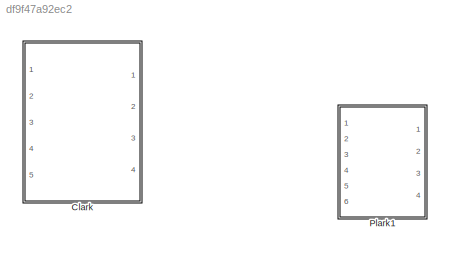
MODEL slx_df9f47a92ec2
KIND model
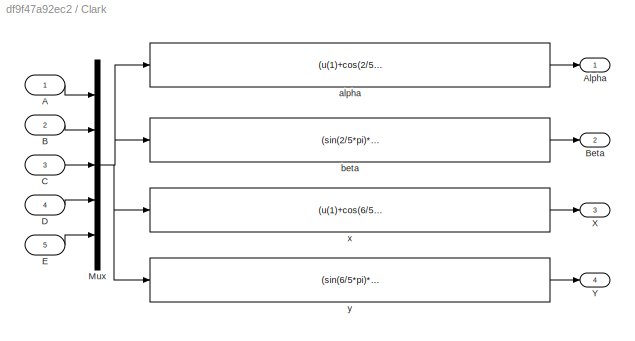
BLOCK [SubSystem] Clark
  Ports = [5, 4]
  RequestExecContextInheritance = off
BLOCK [Inport] Clark/A
  IconDisplay = Port number
BLOCK [Outport] Clark/Alpha
  IconDisplay = Port number
BLOCK [Inport] Clark/B
  IconDisplay = Port number
  Port = 2
BLOCK [Outport] Clark/Beta
  IconDisplay = Port number
  Port = 2
BLOCK [Inport] Clark/C
  IconDisplay = Port number
  Port = 3
BLOCK [Inport] Clark/D
  IconDisplay = Port number
  Port = 4
BLOCK [Inport] Clark/E
  IconDisplay = Port number
  Port = 5
BLOCK [Mux] Clark/Mux
  DisplayOption = bar
  Inputs = 5
  Ports = [5, 1]
BLOCK [Outport] Clark/X
  IconDisplay = Port number
  Port = 3
BLOCK [Outport] Clark/Y
  IconDisplay = Port number
  Port = 4
BLOCK [Fcn] Clark/alpha
  Expr = (u(1)+cos(2/5*pi)*u(2)+cos(4/5*pi)*u(3)+cos(6/5*pi)*u(4)+cos(8/5*pi)*u(5))*2/5
BLOCK [Fcn] Clark/beta
  Expr = (sin(2/5*pi)*u(2)+sin(4/5*pi)*u(3)+sin(6/5*pi)*u(4)+sin(8/5*pi)*u(5))*2/5
BLOCK [Fcn] Clark/x 
  Expr = (u(1)+cos(6/5*pi)*u(2)+cos(12/5*pi)*u(3)+cos(18/5*pi)*u(4)+cos(24/5*pi)*u(5))*2/5
BLOCK [Fcn] Clark/y 
  Expr = (sin(6/5*pi)*u(2)+sin(12/5*pi)*u(3)+sin(18/5*pi)*u(4)+sin(24/5*pi)*u(5))*2/5
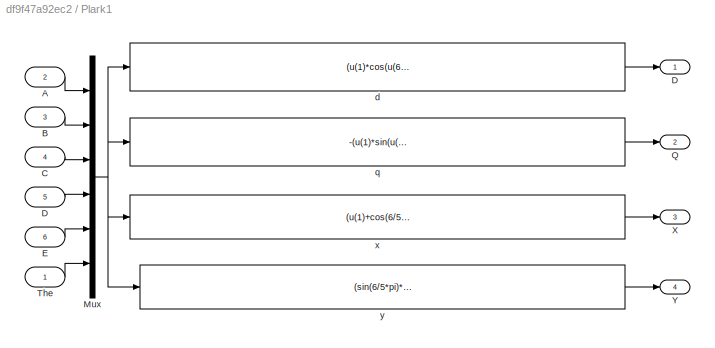
BLOCK [SubSystem] Plark1
  Ports = [6, 4]
  RequestExecContextInheritance = off
BLOCK [Inport] Plark1/A
  IconDisplay = Port number
  Port = 2
BLOCK [Inport] Plark1/B
  IconDisplay = Port number
  Port = 3
BLOCK [Inport] Plark1/C
  IconDisplay = Port number
  Port = 4
BLOCK [Inport] Plark1/D
  IconDisplay = Port number
  Port = 5
BLOCK [Outport] Plark1/D 
  IconDisplay = Port number
BLOCK [Inport] Plark1/E
  IconDisplay = Port number
  Port = 6
BLOCK [Mux] Plark1/Mux
  DisplayOption = bar
  Inputs = 6
  Ports = [6, 1]
BLOCK [Outport] Plark1/Q
  IconDisplay = Port number
  Port = 2
BLOCK [Inport] Plark1/The
  IconDisplay = Port number
BLOCK [Outport] Plark1/X
  IconDisplay = Port number
  Port = 3
BLOCK [Outport] Plark1/Y
  IconDisplay = Port number
  Port = 4
BLOCK [Fcn] Plark1/d
  Expr = (u(1)*cos(u(6))+u(2)*cos(u(6)-2/5*pi)+u(3)*cos(u(6)-4/5*pi)+u(4)*cos(u(6)-6/5*pi)+u(5)*cos(u(6)-8/5*pi))*2/5
BLOCK [Fcn] Plark1/q
  Expr = -(u(1)*sin(u(6))+u(2)*sin(u(6)-2/5*pi)+u(3)*sin(u(6)-4/5*pi)+u(4)*sin(u(6)-6/5*pi)+u(5)*sin(u(6)-8/5*pi))*2/5
BLOCK [Fcn] Plark1/x 
  Expr = (u(1)+cos(6/5*pi)*u(2)+cos(12/5*pi)*u(3)+cos(18/5*pi)*u(4)+cos(24/5*pi)*u(5))*2/5
BLOCK [Fcn] Plark1/y 
  Expr = (sin(6/5*pi)*u(2)+sin(12/5*pi)*u(3)+sin(18/5*pi)*u(4)+sin(24/5*pi)*u(5))*2/5
LINE Clark/A:1 -> Clark/Mux:1
LINE Clark/B:1 -> Clark/Mux:2
LINE Clark/C:1 -> Clark/Mux:3
LINE Clark/D:1 -> Clark/Mux:4
LINE Clark/E:1 -> Clark/Mux:5
NET Clark/Mux:1 -> Clark/alpha:1, Clark/beta:1, Clark/x :1, Clark/y :1
LINE Clark/alpha:1 -> Clark/Alpha:1
LINE Clark/beta:1 -> Clark/Beta:1
LINE Clark/x :1 -> Clark/X:1
LINE Clark/y :1 -> Clark/Y:1
LINE Plark1/A:1 -> Plark1/Mux:1
LINE Plark1/B:1 -> Plark1/Mux:2
LINE Plark1/C:1 -> Plark1/Mux:3
LINE Plark1/D:1 -> Plark1/Mux:4
LINE Plark1/E:1 -> Plark1/Mux:5
NET Plark1/Mux:1 -> Plark1/d:1, Plark1/q:1, Plark1/x :1, Plark1/y :1
LINE Plark1/The:1 -> Plark1/Mux:6
LINE Plark1/d:1 -> Plark1/D :1
LINE Plark1/q:1 -> Plark1/Q:1
LINE Plark1/x :1 -> Plark1/X:1
LINE Plark1/y :1 -> Plark1/Y:1
note: NET lines group one-source signal fan-out (src -> all destinations, sorted); 1:1 wires keep LINE
